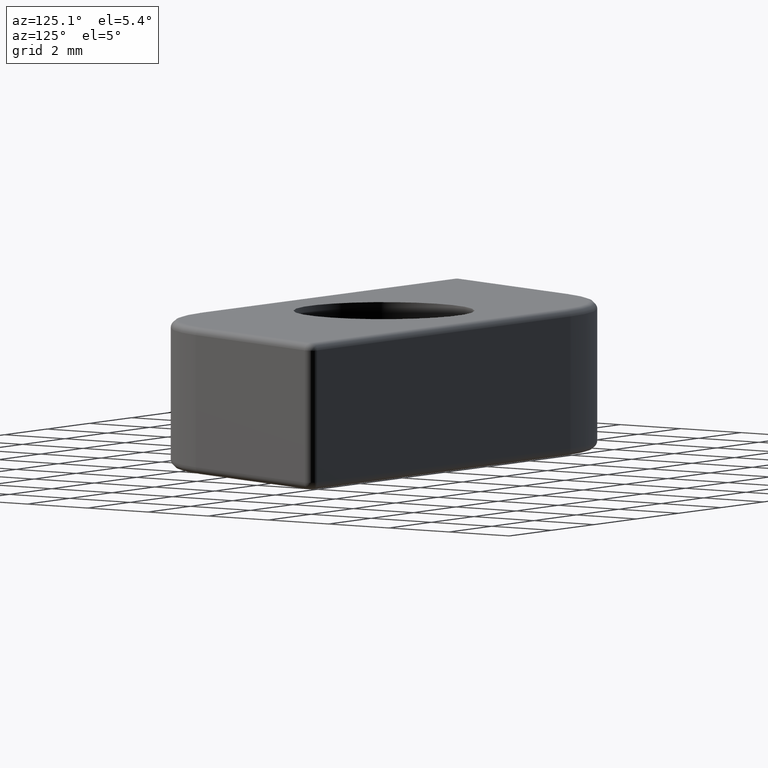
[diagram: clean part render]
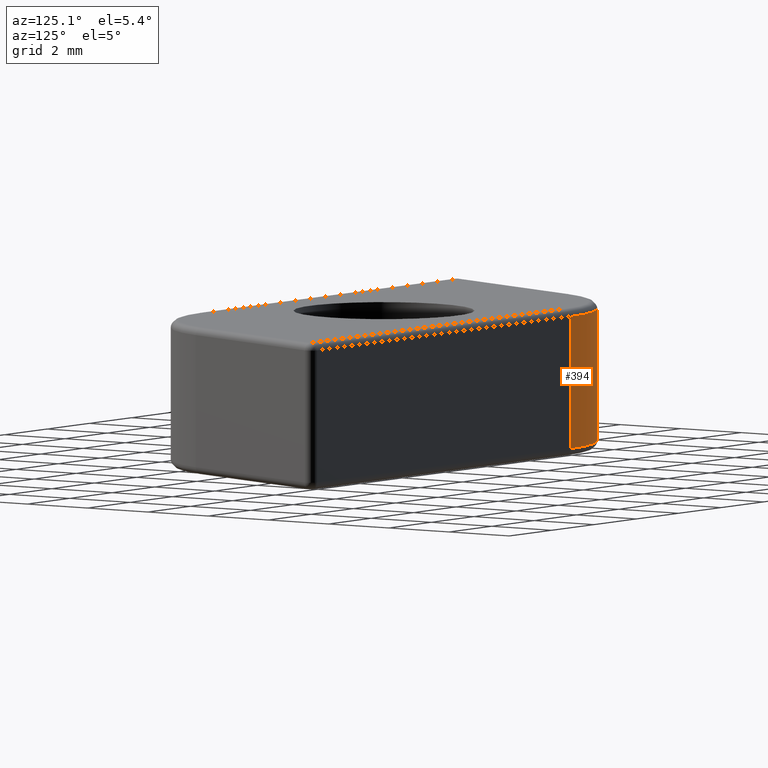
[diagram: same view with one face highlighted and labeled with its STEP entity id]
A machine part, auxiliary view. The second image highlights one B-rep face of the part: STEP entity #394.
In plain terms, the highlighted cylindrical surface (partial cylindrical patch) has radius 4 mm, axis along (0, 0, 1).
Its self-contained STEP definition (entity closure, byte-faithful):
#45=LINE('',#722,#70);
#46=LINE('',#723,#71);
#70=VECTOR('',#602,10.);
#71=VECTOR('',#603,10.);
#84=CYLINDRICAL_SURFACE('',#472,4.);
#109=FACE_OUTER_BOUND('',#136,.T.);
#136=EDGE_LOOP('',(#333,#334,#335,#336));
#147=CIRCLE('',#427,4.);
#152=CIRCLE('',#433,4.);
#176=VERTEX_POINT('',#625);
#178=VERTEX_POINT('',#628);
#182=VERTEX_POINT('',#637);
#183=VERTEX_POINT('',#639);
#207=EDGE_CURVE('',#178,#176,#147,.F.);
#212=EDGE_CURVE('',#183,#182,#152,.F.);
#256=EDGE_CURVE('',#176,#183,#45,.T.);
#257=EDGE_CURVE('',#182,#178,#46,.T.);
#333=ORIENTED_EDGE('',*,*,#207,.T.);
#334=ORIENTED_EDGE('',*,*,#256,.T.);
#335=ORIENTED_EDGE('',*,*,#212,.T.);
#336=ORIENTED_EDGE('',*,*,#257,.T.);
#394=ADVANCED_FACE('',(#109),#84,.T.);
#427=AXIS2_PLACEMENT_3D('',#629,#488,#489);
#433=AXIS2_PLACEMENT_3D('',#640,#500,#501);
#472=AXIS2_PLACEMENT_3D('',#721,#600,#601);
#488=DIRECTION('center_axis',(0.,0.,1.));
#489=DIRECTION('ref_axis',(-0.933340797033894,0.35899158289873,0.));
#500=DIRECTION('center_axis',(0.,0.,-1.));
#501=DIRECTION('ref_axis',(-1.38777878078145E-16,1.,0.));
#600=DIRECTION('center_axis',(0.,0.,1.));
#601=DIRECTION('ref_axis',(-0.566130911142145,0.824315347090763,0.));
#602=DIRECTION('',(0.,0.,-1.));
#603=DIRECTION('',(0.,0.,1.));
#625=CARTESIAN_POINT('',(-3.25272308672009,3.9,3.8));
#628=CARTESIAN_POINT('',(-6.98608627485567,1.33596633159492,3.8));
#629=CARTESIAN_POINT('Origin',(-3.25272308672009,-0.100000000000001,3.8));
#637=CARTESIAN_POINT('',(-6.98608627485567,1.33596633159492,0.2));
#639=CARTESIAN_POINT('',(-3.25272308672009,3.9,0.2));
#640=CARTESIAN_POINT('Origin',(-3.25272308672009,-0.100000000000001,0.2));
#721=CARTESIAN_POINT('Origin',(-3.25272308672009,-0.100000000000001,0.));
#722=CARTESIAN_POINT('',(-3.25272308672009,3.9,0.));
#723=CARTESIAN_POINT('',(-6.98608627485567,1.33596633159492,0.));